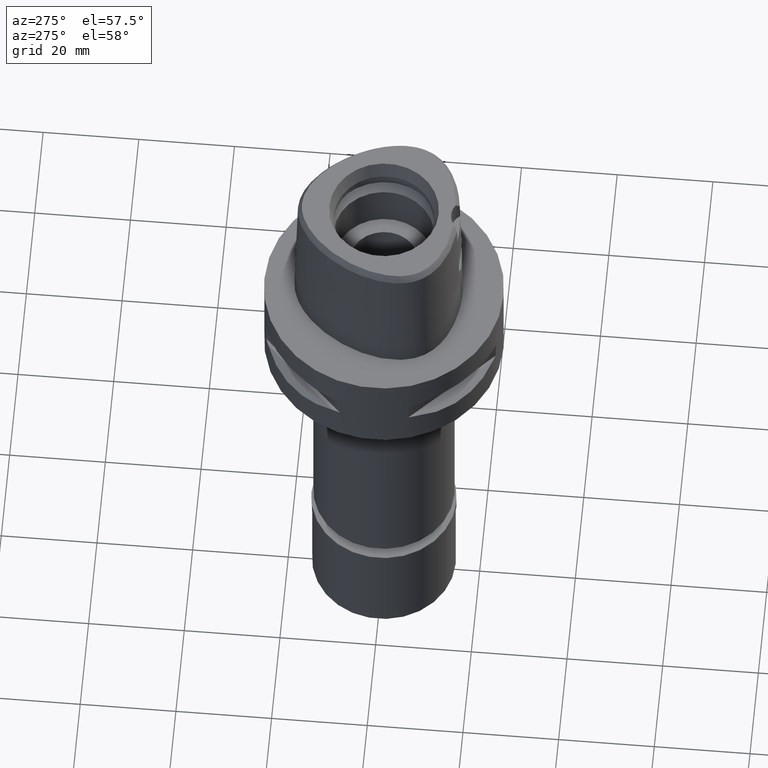
[diagram: clean part render]
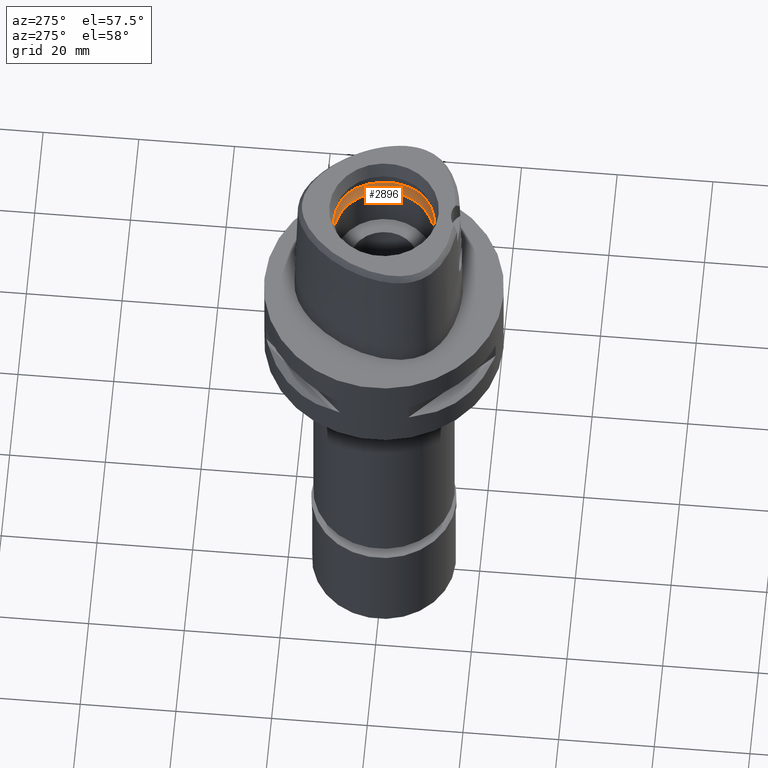
[diagram: same view with one face highlighted and labeled with its STEP entity id]
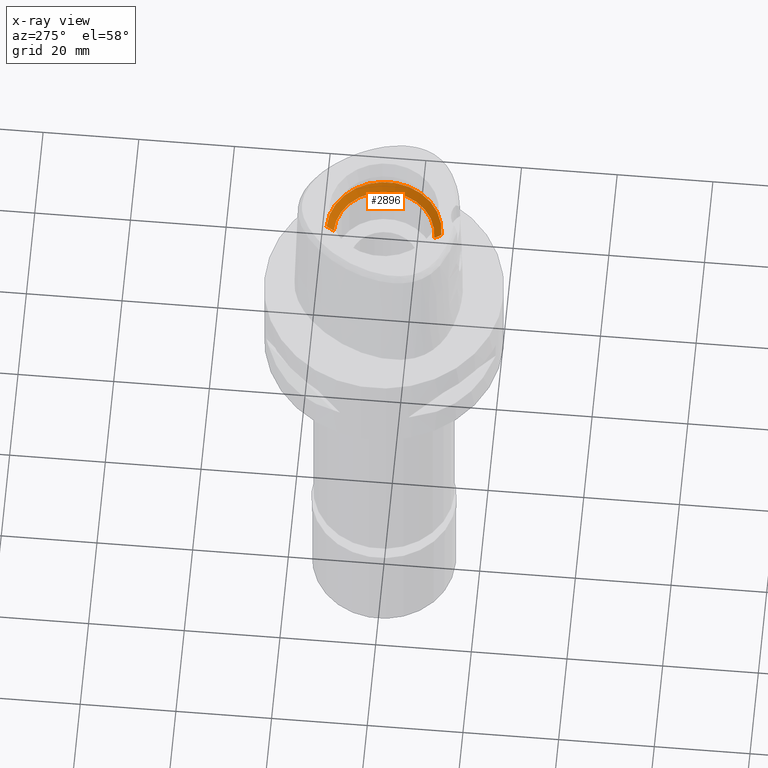
[diagram: x-ray of the same camera — body ghosted, the highlighted face saturated]
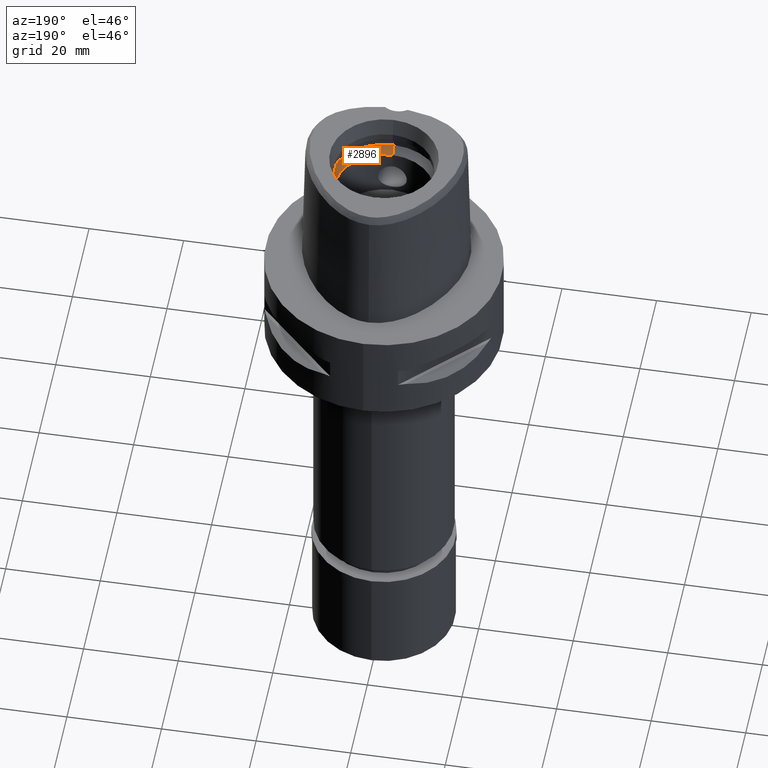
[diagram: same view with one face highlighted and labeled with its STEP entity id]
A machine part, auxiliary view. The second image highlights one B-rep face of the part: STEP entity #2896.
The next image is the same camera in x-ray: the body ghosted, the highlighted face saturated — about 0% of this face is hidden behind the body in this view.
A second angle (auxiliary view) of the same face is appended — the face is thin or edge-on in the first view.
In plain terms, the highlighted conical surface has half-angle 45 deg.
Its self-contained STEP definition (entity closure, byte-faithful):
#188 = CARTESIAN_POINT ( 'NONE',  ( 0.0000000000000000000, -12.00000000000000000, 21.89999999999999858 ) ) ;
#540 = AXIS2_PLACEMENT_3D ( 'NONE', #1471, #2974, #4876 ) ;
#720 = VERTEX_POINT ( 'NONE', #188 ) ;
#789 = CARTESIAN_POINT ( 'NONE',  ( 0.0000000000000000000, 10.50000000000000000, 20.40000000000000213 ) ) ;
#800 = CARTESIAN_POINT ( 'NONE',  ( 0.0000000000000000000, -10.50000000000000000, 20.40000000000000213 ) ) ;
#997 = VERTEX_POINT ( 'NONE', #789 ) ;
#1014 = CIRCLE ( 'NONE', #540, 12.00000000000000000 ) ;
#1016 = EDGE_LOOP ( 'NONE', ( #2474, #1351, #1044, #2005 ) ) ;
#1044 = ORIENTED_EDGE ( 'NONE', *, *, #4520, .F. ) ;
#1271 = FACE_OUTER_BOUND ( 'NONE', #1016, .T. ) ;
#1327 = VERTEX_POINT ( 'NONE', #3687 ) ;
#1351 = ORIENTED_EDGE ( 'NONE', *, *, #3859, .F. ) ;
#1471 = CARTESIAN_POINT ( 'NONE',  ( 0.0000000000000000000, 1.483659597167000164E-14, 21.89999999999999858 ) ) ;
#1536 = EDGE_CURVE ( 'NONE', #3515, #720, #3429, .T. ) ;
#1564 = AXIS2_PLACEMENT_3D ( 'NONE', #3550, #2757, #4357 ) ;
#1898 = DIRECTION ( 'NONE',  ( 0.0000000000000000000, 0.0000000000000000000, 1.000000000000000000 ) ) ;
#2005 = ORIENTED_EDGE ( 'NONE', *, *, #1536, .T. ) ;
#2226 = CARTESIAN_POINT ( 'NONE',  ( 0.0000000000000000000, 10.50000000000000000, 20.40000000000000213 ) ) ;
#2366 = DIRECTION ( 'NONE',  ( 0.0000000000000000000, -1.000000000000000000, 0.0000000000000000000 ) ) ;
#2439 = AXIS2_PLACEMENT_3D ( 'NONE', #3501, #1898, #2366 ) ;
#2474 = ORIENTED_EDGE ( 'NONE', *, *, #4237, .F. ) ;
#2757 = DIRECTION ( 'NONE',  ( 0.0000000000000000000, 0.0000000000000000000, 1.000000000000000000 ) ) ;
#2896 = ADVANCED_FACE ( 'NONE', ( #1271 ), #3696, .F. ) ;
#2974 = DIRECTION ( 'NONE',  ( 0.0000000000000000000, 0.0000000000000000000, -1.000000000000000000 ) ) ;
#3344 = LINE ( 'NONE', #2226, #4183 ) ;
#3429 = LINE ( 'NONE', #4556, #3566 ) ;
#3501 = CARTESIAN_POINT ( 'NONE',  ( 0.0000000000000000000, 1.483659597167000164E-14, 20.40000000000000213 ) ) ;
#3515 = VERTEX_POINT ( 'NONE', #800 ) ;
#3550 = CARTESIAN_POINT ( 'NONE',  ( 0.0000000000000000000, 1.483659597167000164E-14, 21.14999999999999858 ) ) ;
#3566 = VECTOR ( 'NONE', #3733, 1000.000000000000114 ) ;
#3687 = CARTESIAN_POINT ( 'NONE',  ( 0.0000000000000000000, 12.00000000000000000, 21.89999999999999858 ) ) ;
#3696 = CONICAL_SURFACE ( 'NONE', #1564, 11.25000000000000000, 0.7853981633972997312 ) ;
#3733 = DIRECTION ( 'NONE',  ( 0.0000000000000000000, -0.7071067811865474617, 0.7071067811865474617 ) ) ;
#3859 = EDGE_CURVE ( 'NONE', #997, #1327, #3344, .T. ) ;
#4183 = VECTOR ( 'NONE', #4864, 1000.000000000000114 ) ;
#4195 = CIRCLE ( 'NONE', #2439, 10.50000000000000000 ) ;
#4237 = EDGE_CURVE ( 'NONE', #1327, #720, #1014, .T. ) ;
#4357 = DIRECTION ( 'NONE',  ( 0.0000000000000000000, 1.000000000000000000, 0.0000000000000000000 ) ) ;
#4520 = EDGE_CURVE ( 'NONE', #3515, #997, #4195, .T. ) ;
#4556 = CARTESIAN_POINT ( 'NONE',  ( 0.0000000000000000000, -10.50000000000000000, 20.40000000000000213 ) ) ;
#4864 = DIRECTION ( 'NONE',  ( 0.0000000000000000000, 0.7071067811865474617, 0.7071067811865474617 ) ) ;
#4876 = DIRECTION ( 'NONE',  ( 0.0000000000000000000, 1.000000000000000000, 0.0000000000000000000 ) ) ;